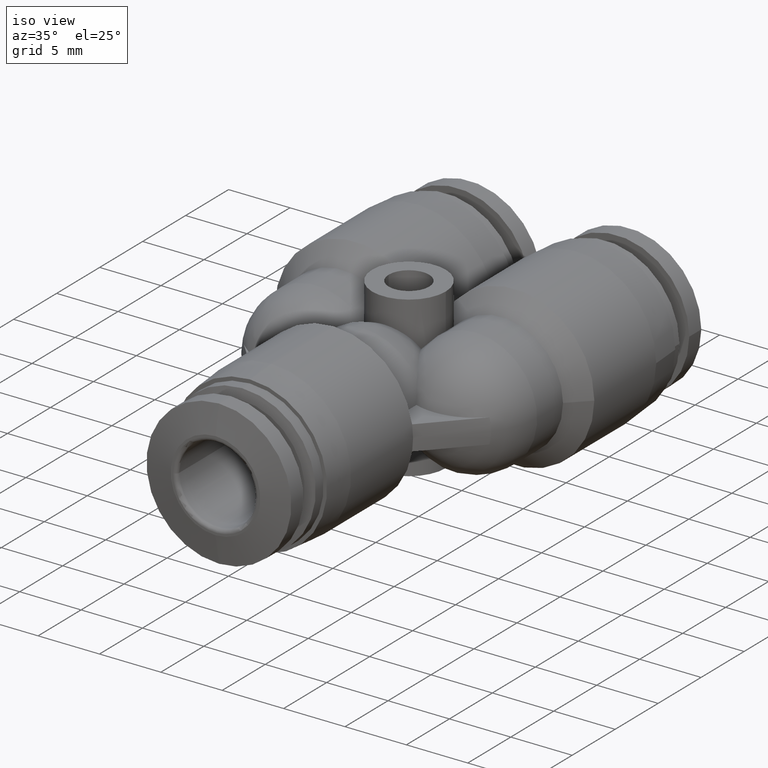
[diagram: clean part render]
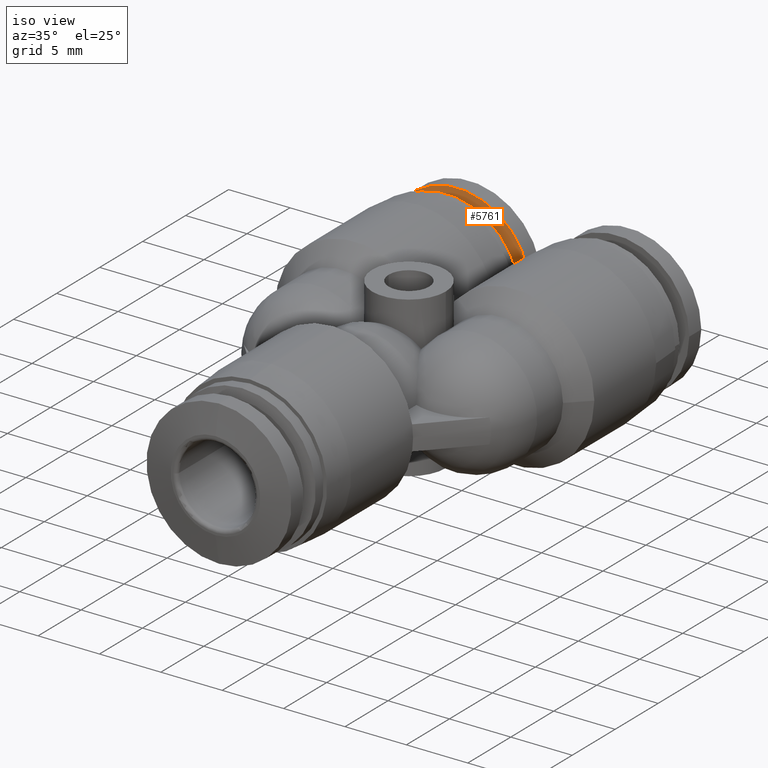
[diagram: same view with one face highlighted and labeled with its STEP entity id]
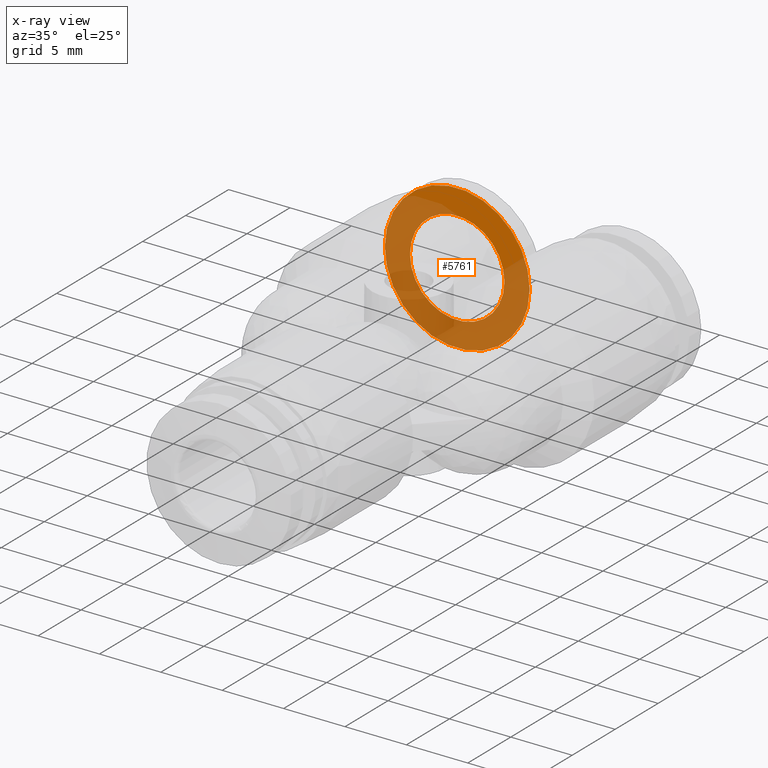
[diagram: x-ray of the same camera — body ghosted, the highlighted face saturated]
A machine part, iso view. The second image highlights one B-rep face of the part: STEP entity #5761.
The next image is the same camera in x-ray: the body ghosted, the highlighted face saturated — about 73% of this face is hidden behind the body in this view.
In plain terms, the highlighted planar face has unit normal (0, -1, 0).
Its self-contained STEP definition (entity closure, byte-faithful):
#2 = DIRECTION ( 'NONE',  ( 0.0000000000000000000, -1.000000000000000000, 0.0000000000000000000 ) ) ;
#181 = DIRECTION ( 'NONE',  ( -6.455563999999999400E-014, 1.000000000000000000, 0.0000000000000000000 ) ) ;
#401 = EDGE_CURVE ( 'NONE', #5112, #1397, #2154, .T. ) ;
#465 = CARTESIAN_POINT ( 'NONE',  ( -0.4881889763780659100, 1.216535433070326400, 0.0000000000000000000 ) ) ;
#524 = CARTESIAN_POINT ( 'NONE',  ( -0.02362204724433516000, 1.216535433070356400, 2.844652013766715200E-017 ) ) ;
#613 = DIRECTION ( 'NONE',  ( -6.455563999999999400E-014, 1.000000000000000000, 0.0000000000000000000 ) ) ;
#826 = DIRECTION ( 'NONE',  ( -6.455563999999999400E-014, 1.000000000000000000, 0.0000000000000000000 ) ) ;
#1397 = VERTEX_POINT ( 'NONE', #1731 ) ;
#1556 = VERTEX_POINT ( 'NONE', #465 ) ;
#1722 = PLANE ( 'NONE',  #2766 ) ;
#1731 = CARTESIAN_POINT ( 'NONE',  ( -0.4074803149607710800, 1.216535433070326400, 0.0000000000000000000 ) ) ;
#1879 = CARTESIAN_POINT ( 'NONE',  ( -0.1043307086616299500, 1.216535433070346000, 1.856255975085117100E-017 ) ) ;
#1929 = AXIS2_PLACEMENT_3D ( 'NONE', #3563, #5433, #5406 ) ;
#2097 = AXIS2_PLACEMENT_3D ( 'NONE', #2840, #181, #3286 ) ;
#2154 = CIRCLE ( 'NONE', #1929, 0.1515748031495705900 ) ;
#2254 = AXIS2_PLACEMENT_3D ( 'NONE', #2540, #613, #3706 ) ;
#2386 = ORIENTED_EDGE ( 'NONE', *, *, #401, .T. ) ;
#2540 = CARTESIAN_POINT ( 'NONE',  ( -0.2559055118112005300, 1.216535433070336200, 0.0000000000000000000 ) ) ;
#2670 = CARTESIAN_POINT ( 'NONE',  ( -0.4478346456694186600, 1.216535433070326400, 0.0000000000000000000 ) ) ;
#2766 = AXIS2_PLACEMENT_3D ( 'NONE', #2670, #2, #3094 ) ;
#2840 = CARTESIAN_POINT ( 'NONE',  ( -0.2559055118112005300, 1.216535433070341500, 0.0000000000000000000 ) ) ;
#3094 = DIRECTION ( 'NONE',  ( 0.0000000000000000000, -0.0000000000000000000, -1.000000000000000000 ) ) ;
#3286 = DIRECTION ( 'NONE',  ( -1.000000000000000000, -6.468460418898344300E-014, 0.0000000000000000000 ) ) ;
#3378 = EDGE_CURVE ( 'NONE', #1397, #5112, #3815, .T. ) ;
#3491 = CARTESIAN_POINT ( 'NONE',  ( -0.2559055118112005300, 1.216535433070341500, 0.0000000000000000000 ) ) ;
#3493 = CIRCLE ( 'NONE', #2097, 0.2322834645668654100 ) ;
#3563 = CARTESIAN_POINT ( 'NONE',  ( -0.2559055118112005300, 1.216535433070336200, 0.0000000000000000000 ) ) ;
#3706 = DIRECTION ( 'NONE',  ( -1.000000000000000000, -6.488316377681015400E-014, 0.0000000000000000000 ) ) ;
#3734 = EDGE_CURVE ( 'NONE', #1556, #4537, #4188, .T. ) ;
#3796 = FACE_BOUND ( 'NONE', #4638, .T. ) ;
#3815 = CIRCLE ( 'NONE', #2254, 0.1515748031495705900 ) ;
#3831 = ORIENTED_EDGE ( 'NONE', *, *, #3378, .T. ) ;
#3936 = DIRECTION ( 'NONE',  ( -1.000000000000000000, -6.468460418898344300E-014, 0.0000000000000000000 ) ) ;
#3977 = EDGE_CURVE ( 'NONE', #4537, #1556, #3493, .T. ) ;
#4086 = EDGE_LOOP ( 'NONE', ( #5419, #5629 ) ) ;
#4188 = CIRCLE ( 'NONE', #5466, 0.2322834645668654100 ) ;
#4537 = VERTEX_POINT ( 'NONE', #524 ) ;
#4638 = EDGE_LOOP ( 'NONE', ( #3831, #2386 ) ) ;
#5042 = FACE_OUTER_BOUND ( 'NONE', #4086, .T. ) ;
#5112 = VERTEX_POINT ( 'NONE', #1879 ) ;
#5406 = DIRECTION ( 'NONE',  ( -1.000000000000000000, -6.488316377681015400E-014, 0.0000000000000000000 ) ) ;
#5419 = ORIENTED_EDGE ( 'NONE', *, *, #3734, .F. ) ;
#5433 = DIRECTION ( 'NONE',  ( -6.455563999999999400E-014, 1.000000000000000000, 0.0000000000000000000 ) ) ;
#5466 = AXIS2_PLACEMENT_3D ( 'NONE', #3491, #826, #3936 ) ;
#5629 = ORIENTED_EDGE ( 'NONE', *, *, #3977, .F. ) ;
#5761 = ADVANCED_FACE ( 'NONE', ( #3796, #5042 ), #1722, .T. ) ;